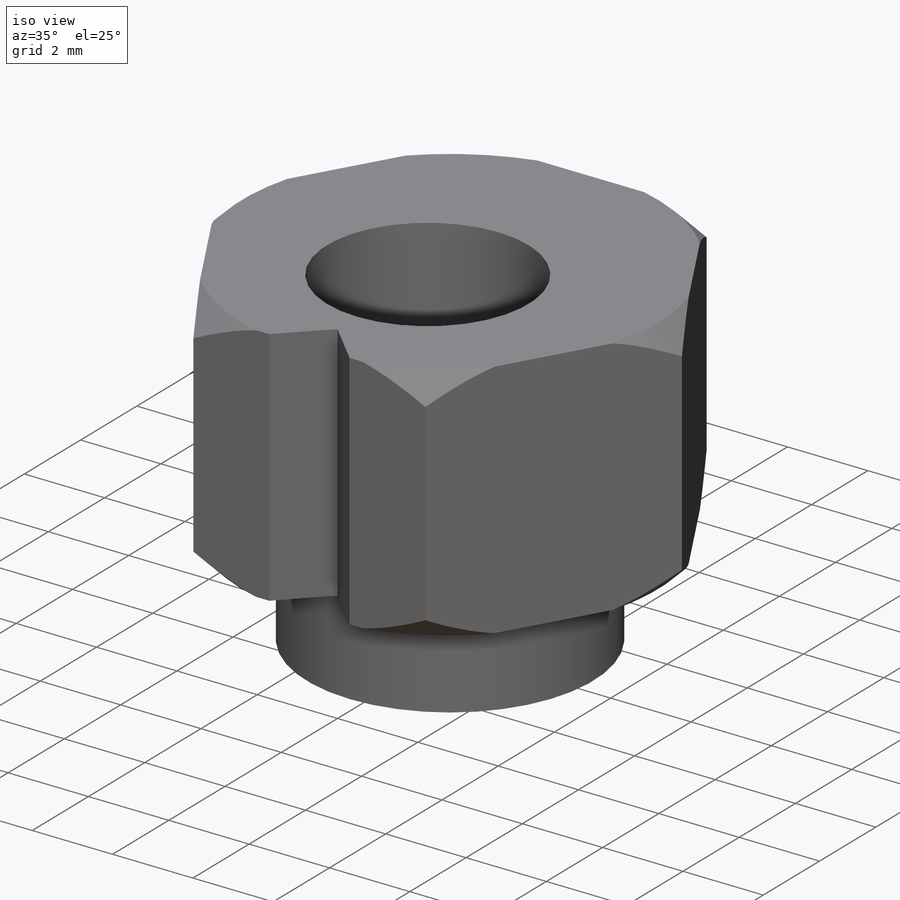
[diagram: iso view]
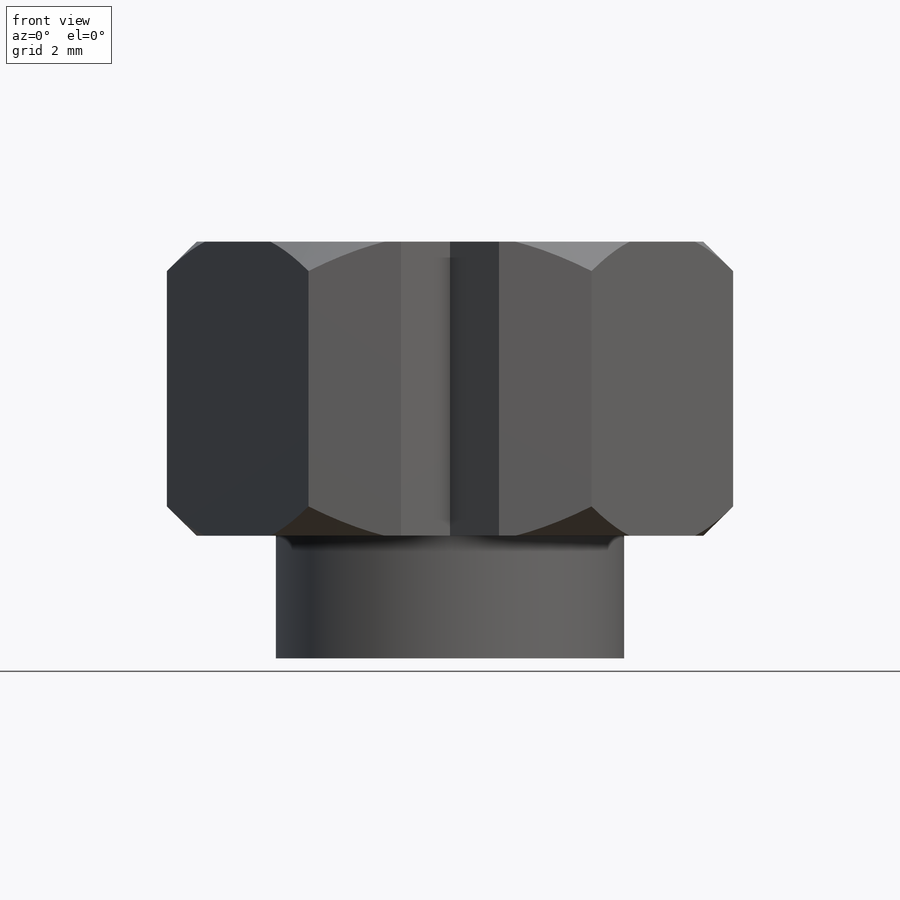
[diagram: front view]
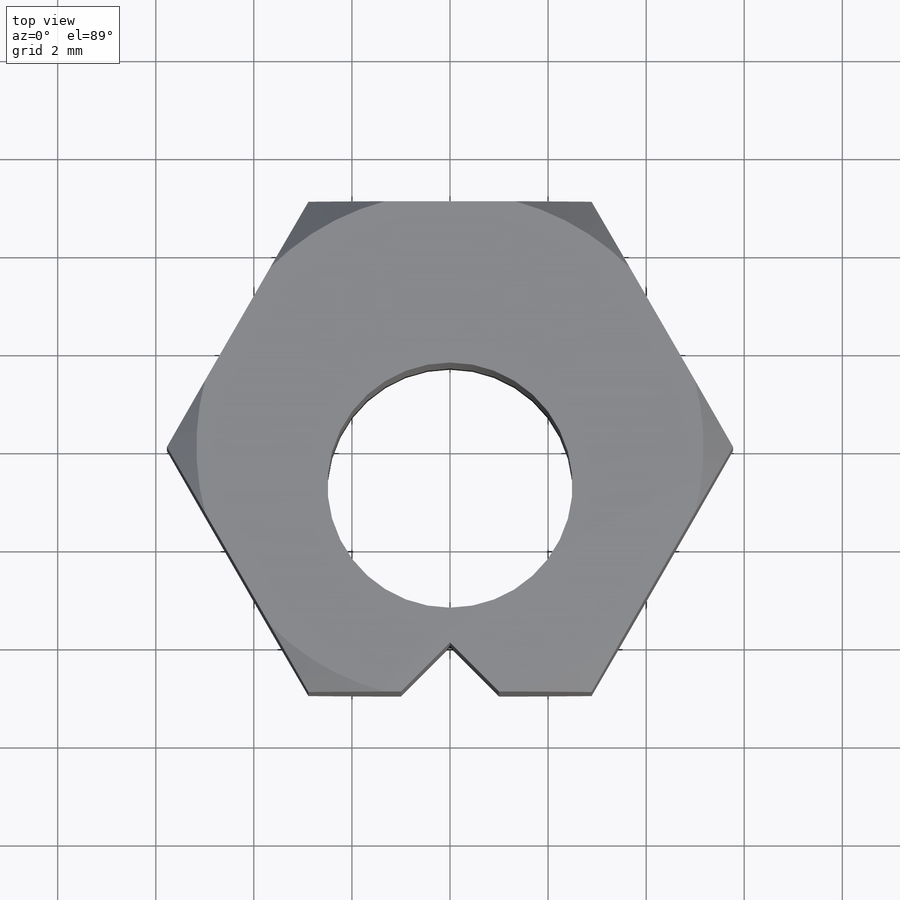
[diagram: top view]
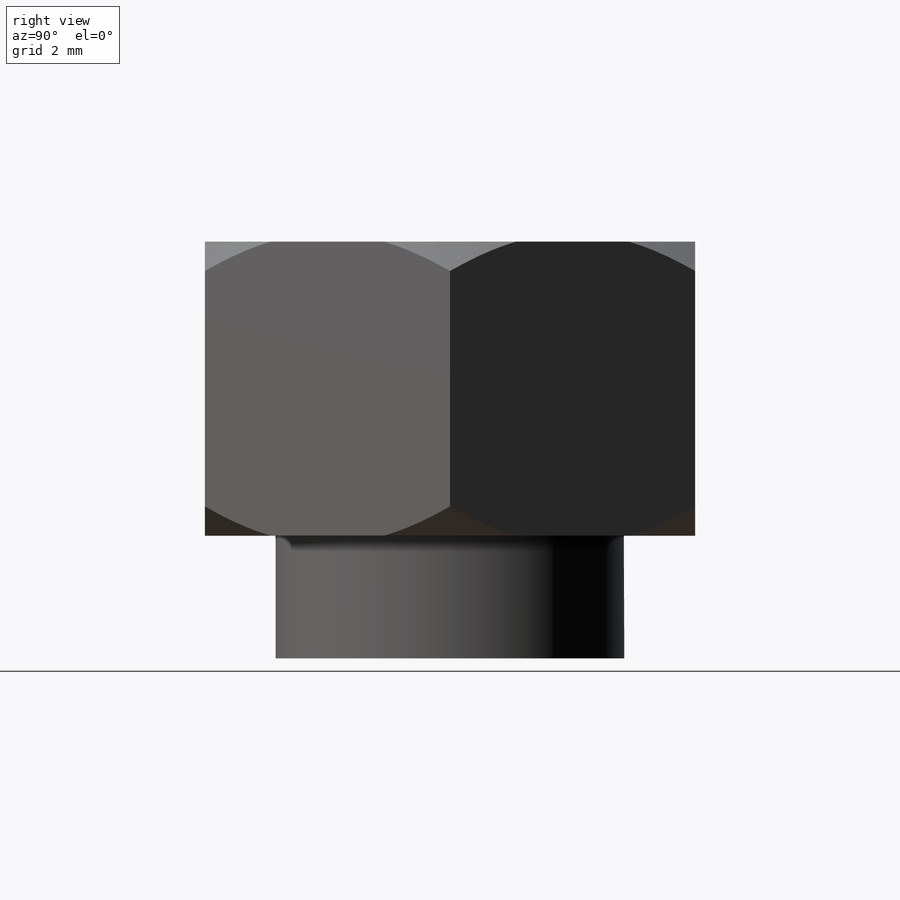
[diagram: right view]
SOLIDWORKS PART (.sldprt)
format: sldprt  version: not decoded by parser v0  size: 197,632 bytes
history: native  units: mm
features: sketch x5, extrude x2, cut_extrude x2, material x1, cut_revolve x1 (+13 scaffold rows collapsed)
feature tree (24):
  scaffold x13  (default folders/planes/origin — collapsed)
  material  "AISI 304"
  sketch  "Sketch1"  dims[D1=10.0mm]
  extrude  "Boss-Extrude1"  Depth=6mm
  sketch  "Sketch3"  dims[D1=7.11mm]
  extrude  "Boss-Extrude3"  Depth=2.5mm
  sketch  "Sketch4"  dims[D1=5.0mm D2=0.79mm]
  cut_extrude  "Cut-Extrude1"  [1 undecoded]
  sketch  "Sketch5"  dims[c1.D1=3.4mm c1.D2=0.5mm c2.D1=2.0mm c2.D2=0.13mm]
  cut_extrude  "Cut-Extrude2"  [1 undecoded]
  sketch  "Sketch6"  dims[D1=0.6mm]
  cut_revolve  "Cut-Revolve1"  Angle=360deg
decode coverage: 8 of 10 modeling features carry decoded parameters
note: 2 parameter values undecoded
note: suppression state not decoded; provenance and decode notes live in map.json
